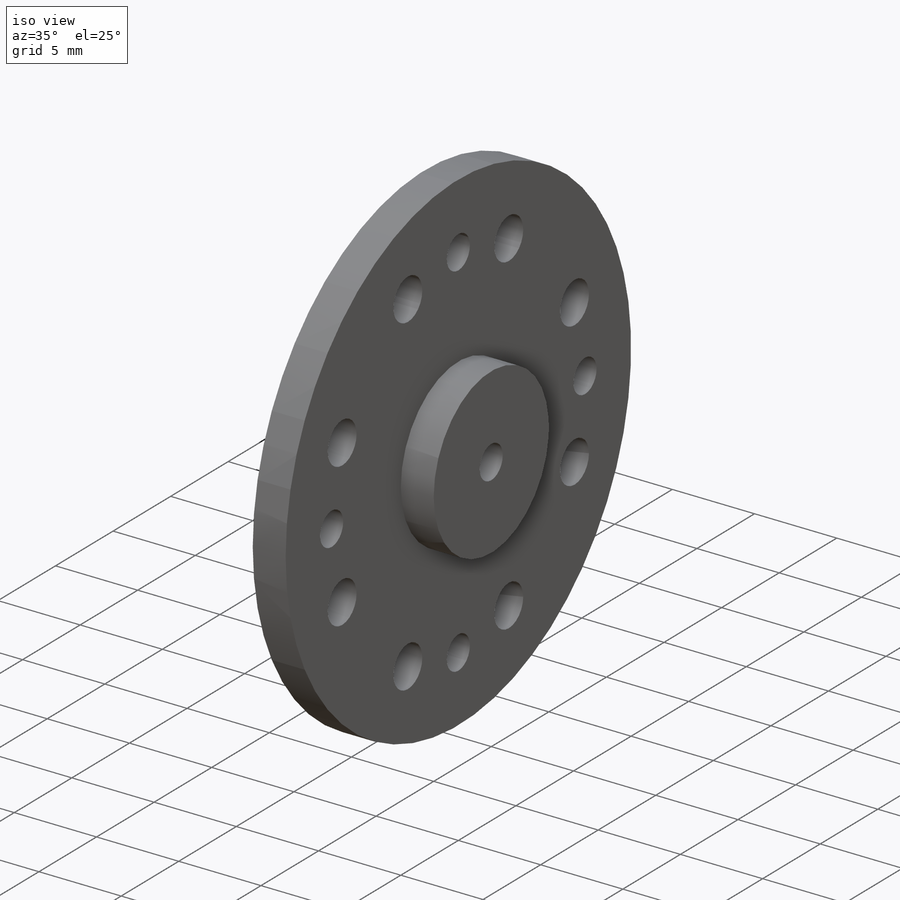
[diagram: iso view]
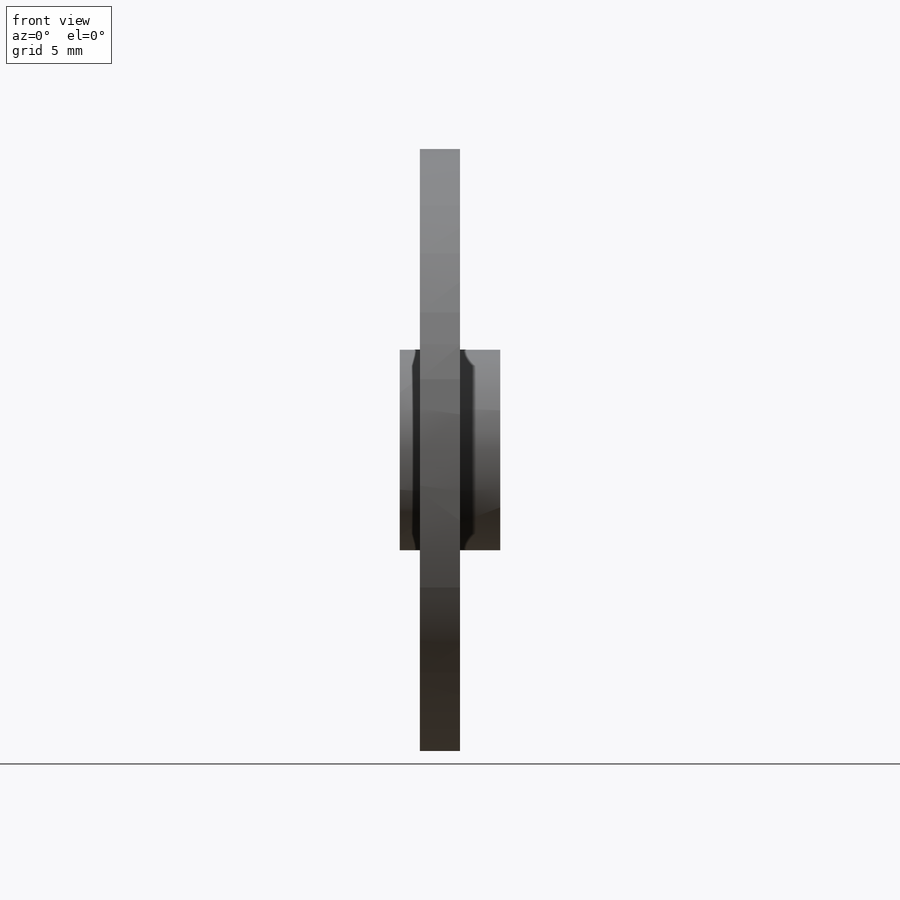
[diagram: front view]
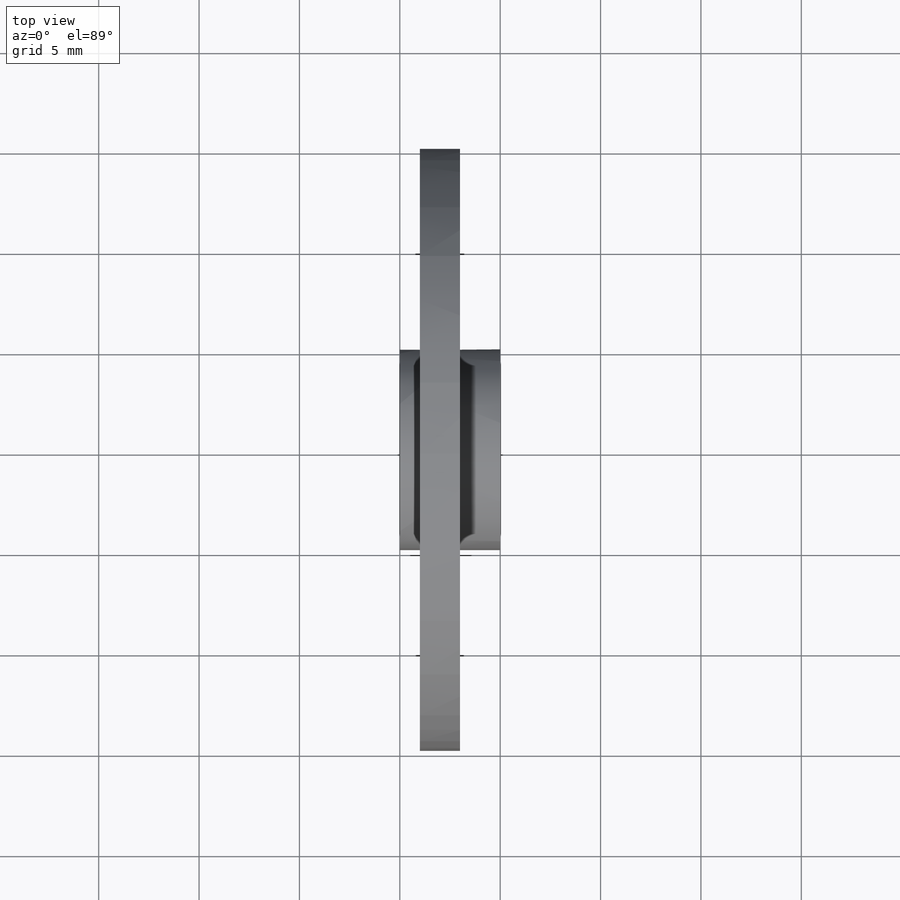
[diagram: top view]
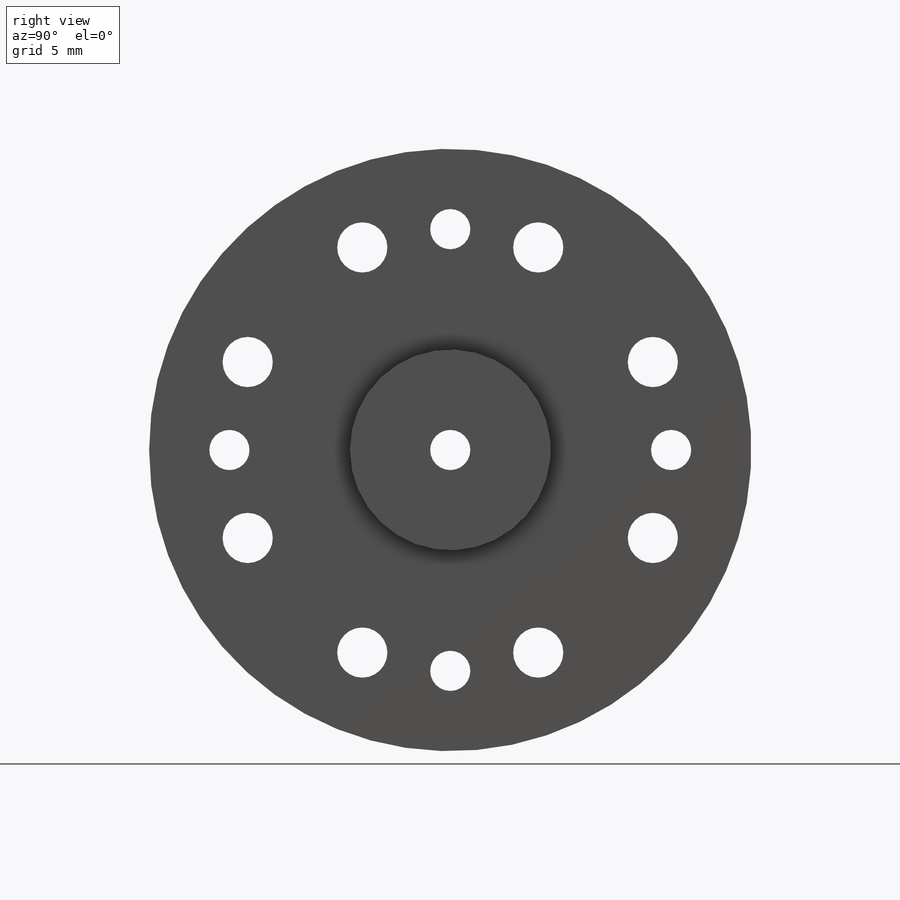
[diagram: right view]
SOLIDWORKS PART (.sldprt)
format: sldprt  version: not decoded by parser v0  size: 224,768 bytes
history: native  units: mm
features: sketch x5, cut_extrude x3, material x1, revolve x1, extrude x1 (+16 scaffold rows collapsed)
feature tree (27):
  scaffold x16  (default folders/planes/origin — collapsed)
  material  "Material <not specified>"
  sketch  "Sketch1"  dims[c1.D3=~5.55625mm c1.D1=3.0mm c1.D2=14.0mm c1.D4=~1.190625mm c1.D5=~1.190625mm c2.D2=15.0mm]
  revolve  "Revolve1"  Angle=360deg
  sketch  "Sketch3"  dims[D1=3.0mm]
  cut_extrude  "Extrude1"  [1 undecoded]
  sketch  "Sketch4"  dims[c1.D1=2.0mm c1.D5=2.5mm c1.D7=~2.012052mm c1.D8=~2.012052mm c1.D3=22.0mm c2.D7=22.0mm c2.D2=11.0mm c2.D3=~34.719222mm c3.D3=30.0deg c3.D4=~37.861489mm c4.D4=30.0deg c4.D6=11.0mm c4.D3=11.0mm]
  cut_extrude  "Extrude2"  [1 undecoded]
  sketch  "Sketch5"  dims[D1=10.0mm]
  extrude  "Boss-Extrude1"  Depth=2mm
  sketch  "Sketch6"  dims[D1=10.0mm]
  cut_extrude  "Cut-Extrude2"  Depth=1mm
decode coverage: 8 of 10 modeling features carry decoded parameters
note: ~ marks probable driven/reference dimensions
note: 2 parameter values undecoded
note: suppression state not decoded; provenance and decode notes live in map.json
